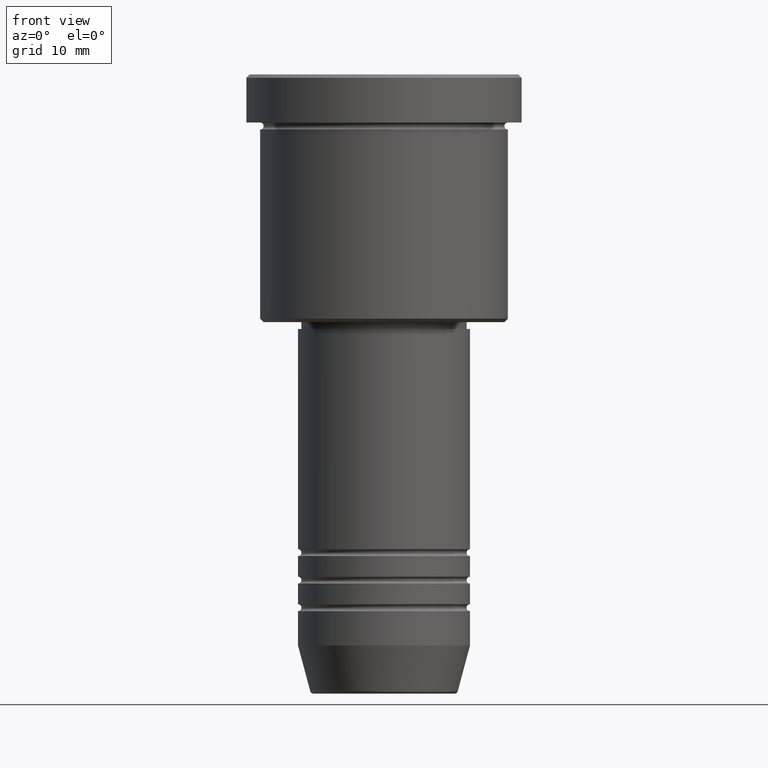
[diagram: clean part render]
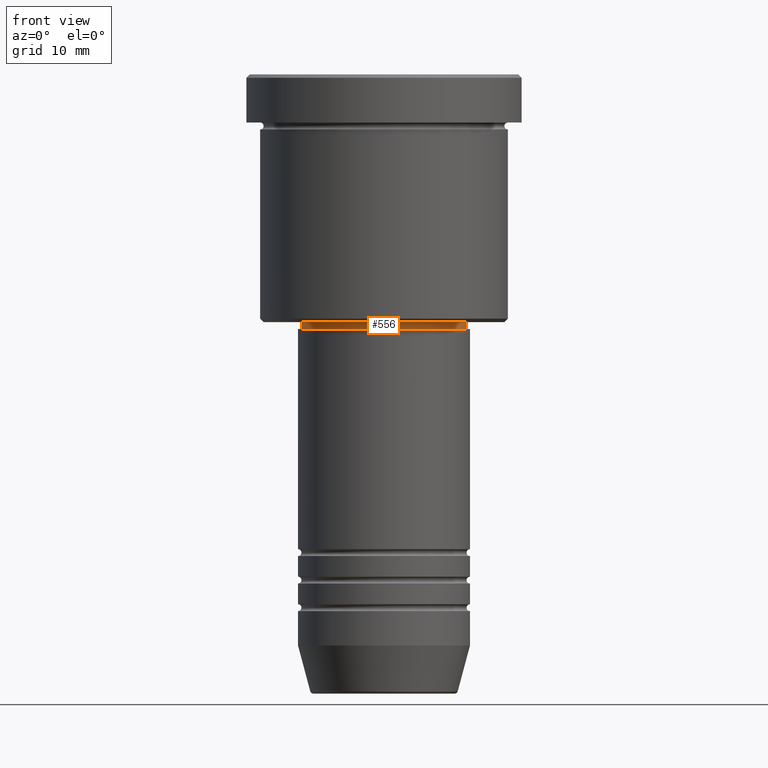
[diagram: same view with one face highlighted and labeled with its STEP entity id]
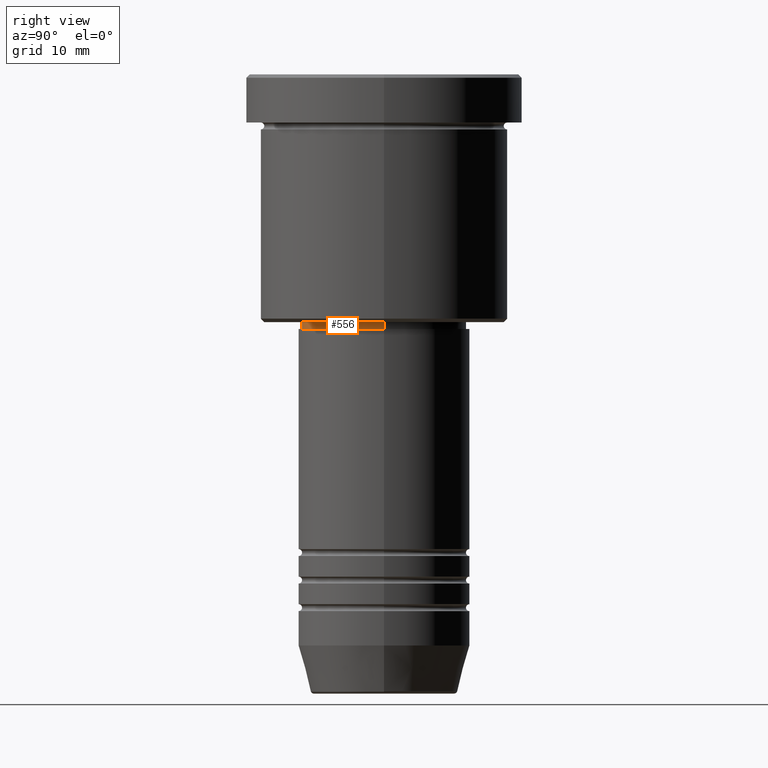
[diagram: same view with one face highlighted and labeled with its STEP entity id]
A machine part, front view. The second image highlights one B-rep face of the part: STEP entity #556.
A second angle (right view) of the same face is appended — the face is thin or edge-on in the first view.
In plain terms, the highlighted cylindrical surface (partial cylindrical patch) has radius 12 mm, axis along (-0, -0, 1).
Its self-contained STEP definition (entity closure, byte-faithful):
#2 = AXIS2_PLACEMENT_3D ( 'NONE', #944, #121, #28 ) ;
#6 = VECTOR ( 'NONE', #1028, 1000.000000000000000 ) ;
#20 = EDGE_CURVE ( 'NONE', #1103, #254, #442, .T. ) ;
#23 = DIRECTION ( 'NONE',  ( -0.000000000000000000, -0.000000000000000000, 1.000000000000000000 ) ) ;
#28 = DIRECTION ( 'NONE',  ( 1.000000000000000000, 0.000000000000000000, 0.000000000000000000 ) ) ;
#41 = LINE ( 'NONE', #960, #838 ) ;
#89 = ORIENTED_EDGE ( 'NONE', *, *, #714, .F. ) ;
#121 = DIRECTION ( 'NONE',  ( -0.000000000000000000, -0.000000000000000000, 1.000000000000000000 ) ) ;
#133 = AXIS2_PLACEMENT_3D ( 'NONE', #1060, #972, #530 ) ;
#148 = ORIENTED_EDGE ( 'NONE', *, *, #1113, .F. ) ;
#181 = CYLINDRICAL_SURFACE ( 'NONE', #1137, 12.00000000000000000 ) ;
#233 = CARTESIAN_POINT ( 'NONE',  ( 0.000000000000000000, 0.000000000000000000, 0.000000000000000000 ) ) ;
#234 = CARTESIAN_POINT ( 'NONE',  ( 12.00000000000000000, 0.000000000000000000, -36.00000000000000000 ) ) ;
#254 = VERTEX_POINT ( 'NONE', #834 ) ;
#366 = ORIENTED_EDGE ( 'NONE', *, *, #20, .T. ) ;
#442 = CIRCLE ( 'NONE', #2, 12.00000000000000000 ) ;
#476 = EDGE_CURVE ( 'NONE', #254, #511, #766, .T. ) ;
#478 = CARTESIAN_POINT ( 'NONE',  ( -12.00000000000000000, 1.469576158976823947E-15, -37.00000000000000711 ) ) ;
#481 = CARTESIAN_POINT ( 'NONE',  ( 12.00000000000000000, 0.000000000000000000, 0.000000000000000000 ) ) ;
#511 = VERTEX_POINT ( 'NONE', #234 ) ;
#530 = DIRECTION ( 'NONE',  ( 1.000000000000000000, 0.000000000000000000, 0.000000000000000000 ) ) ;
#556 = ADVANCED_FACE ( 'NONE', ( #988 ), #181, .T. ) ;
#651 = DIRECTION ( 'NONE',  ( -0.000000000000000000, -0.000000000000000000, 1.000000000000000000 ) ) ;
#714 = EDGE_CURVE ( 'NONE', #995, #511, #1134, .T. ) ;
#766 = LINE ( 'NONE', #481, #6 ) ;
#824 = ORIENTED_EDGE ( 'NONE', *, *, #476, .T. ) ;
#834 = CARTESIAN_POINT ( 'NONE',  ( 12.00000000000000000, 0.000000000000000000, -37.00000000000000711 ) ) ;
#838 = VECTOR ( 'NONE', #23, 1000.000000000000000 ) ;
#928 = DIRECTION ( 'NONE',  ( 1.000000000000000000, 0.000000000000000000, 0.000000000000000000 ) ) ;
#944 = CARTESIAN_POINT ( 'NONE',  ( 0.000000000000000000, 0.000000000000000000, -37.00000000000000711 ) ) ;
#960 = CARTESIAN_POINT ( 'NONE',  ( -12.00000000000000000, 1.469576158976823947E-15, 0.000000000000000000 ) ) ;
#972 = DIRECTION ( 'NONE',  ( -0.000000000000000000, -0.000000000000000000, 1.000000000000000000 ) ) ;
#988 = FACE_OUTER_BOUND ( 'NONE', #1007, .T. ) ;
#995 = VERTEX_POINT ( 'NONE', #1098 ) ;
#1007 = EDGE_LOOP ( 'NONE', ( #148, #366, #824, #89 ) ) ;
#1028 = DIRECTION ( 'NONE',  ( -0.000000000000000000, -0.000000000000000000, 1.000000000000000000 ) ) ;
#1060 = CARTESIAN_POINT ( 'NONE',  ( 0.000000000000000000, 0.000000000000000000, -36.00000000000000000 ) ) ;
#1098 = CARTESIAN_POINT ( 'NONE',  ( -12.00000000000000000, 1.469576158976823947E-15, -36.00000000000000000 ) ) ;
#1103 = VERTEX_POINT ( 'NONE', #478 ) ;
#1113 = EDGE_CURVE ( 'NONE', #1103, #995, #41, .T. ) ;
#1134 = CIRCLE ( 'NONE', #133, 12.00000000000000000 ) ;
#1137 = AXIS2_PLACEMENT_3D ( 'NONE', #233, #651, #928 ) ;